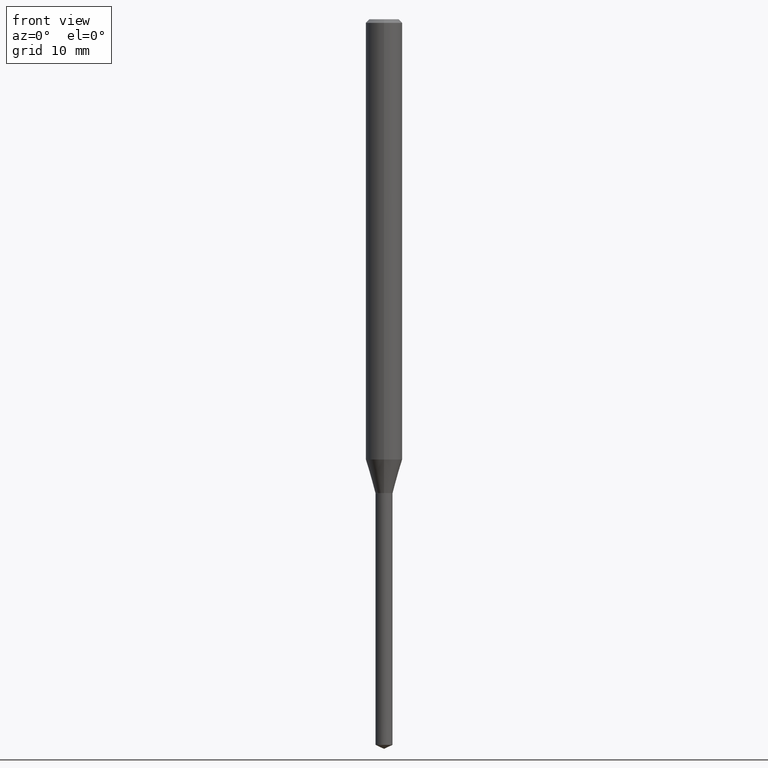
[diagram: clean part render]
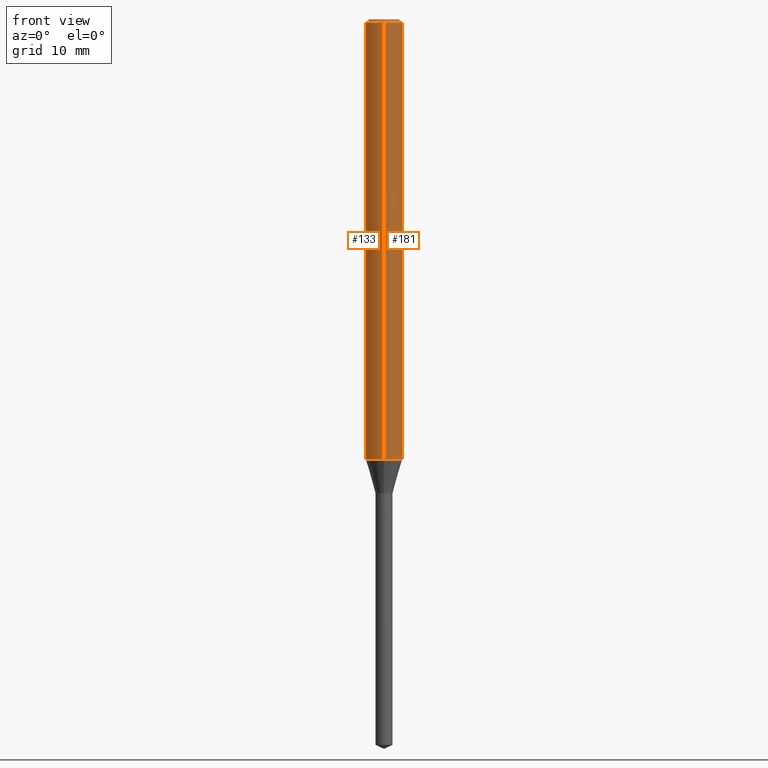
[diagram: same view with one multi-face feature highlighted, each face labeled with its STEP entity id]
A machine part, front view. The highlighted faces form ONE feature: a constant-radius fillet chain: 2 tangent blend faces with common blend radius 1.5 mm. The faces share edges in the B-rep.
Their STEP definitions:
[1] entity #133 (Cylinder):
#93=EDGE_CURVE('',#161,#123,#228,.T.);
#101=VERTEX_POINT('',#237);
#123=VERTEX_POINT('',#263);
#133=ADVANCED_FACE('',(#274),#275,.T.);
#159=VERTEX_POINT('',#304);
#161=VERTEX_POINT('',#306);
#173=EDGE_CURVE('',#159,#161,#318,.T.);
#189=EDGE_CURVE('',#159,#101,#338,.T.);
#203=EDGE_CURVE('',#123,#101,#353,.T.);
#228=CIRCLE('',#373,1.5);
#237=CARTESIAN_POINT('',(0.0,1.5,-36.21));
#263=CARTESIAN_POINT('',(0.0,1.5,-0.299999999999997));
#274=FACE_OUTER_BOUND('',#429,.T.);
#275=CYLINDRICAL_SURFACE('',#430,1.5);
#304=CARTESIAN_POINT('',(1.83690953073357E-016,-1.5,-36.21));
#306=CARTESIAN_POINT('',(1.83690953073357E-016,-1.5,-0.299999999999997));
#318=LINE('',#482,#483);
#338=CIRCLE('',#508,1.5);
#353=LINE('',#529,#530);
#373=AXIS2_PLACEMENT_3D('',#536,#537,#538);
#429=EDGE_LOOP('',(#596,#597,#598,#599));
#430=AXIS2_PLACEMENT_3D('',#600,#601,#602);
#482=CARTESIAN_POINT('',(1.83690953073357E-016,-1.5,-18.255));
#483=VECTOR('',#643,1.0);
#508=AXIS2_PLACEMENT_3D('',#683,#684,#685);
#529=CARTESIAN_POINT('',(-1.83690953073357E-016,1.5,-18.255));
#530=VECTOR('',#699,1.0);
#536=CARTESIAN_POINT('',(0.0,0.0,-0.299999999999997));
#537=DIRECTION('',(0.0,0.0,-1.0));
#538=DIRECTION('',(0.0,1.0,0.0));
#596=ORIENTED_EDGE('',*,*,#203,.T.);
#597=ORIENTED_EDGE('',*,*,#189,.F.);
#598=ORIENTED_EDGE('',*,*,#173,.T.);
#599=ORIENTED_EDGE('',*,*,#93,.T.);
#600=CARTESIAN_POINT('',(0.0,0.0,-18.255));
#601=DIRECTION('',(-0.0,-0.0,1.0));
#602=DIRECTION('',(0.0,1.0,0.0));
#643=DIRECTION('',(-0.0,-0.0,1.0));
#683=CARTESIAN_POINT('',(0.0,0.0,-36.21));
#684=DIRECTION('',(0.0,0.0,-1.0));
#685=DIRECTION('',(0.0,1.0,0.0));
#699=DIRECTION('',(0.0,0.0,-1.0));
[2] entity #181 (Cylinder):
#101=VERTEX_POINT('',#237);
#123=VERTEX_POINT('',#263);
#137=EDGE_CURVE('',#123,#161,#279,.T.);
#159=VERTEX_POINT('',#304);
#161=VERTEX_POINT('',#306);
#163=EDGE_CURVE('',#101,#159,#308,.T.);
#173=EDGE_CURVE('',#159,#161,#318,.T.);
#181=ADVANCED_FACE('',(#328),#329,.T.);
#203=EDGE_CURVE('',#123,#101,#353,.T.);
#237=CARTESIAN_POINT('',(0.0,1.5,-36.21));
#263=CARTESIAN_POINT('',(0.0,1.5,-0.299999999999997));
#279=CIRCLE('',#435,1.5);
#304=CARTESIAN_POINT('',(1.83690953073357E-016,-1.5,-36.21));
#306=CARTESIAN_POINT('',(1.83690953073357E-016,-1.5,-0.299999999999997));
#308=CIRCLE('',#470,1.5);
#318=LINE('',#482,#483);
#328=FACE_OUTER_BOUND('',#494,.T.);
#329=CYLINDRICAL_SURFACE('',#495,1.5);
#353=LINE('',#529,#530);
#435=AXIS2_PLACEMENT_3D('',#603,#604,#605);
#470=AXIS2_PLACEMENT_3D('',#637,#638,#639);
#482=CARTESIAN_POINT('',(1.83690953073357E-016,-1.5,-18.255));
#483=VECTOR('',#643,1.0);
#494=EDGE_LOOP('',(#664,#665,#666,#667));
#495=AXIS2_PLACEMENT_3D('',#668,#669,#670);
#529=CARTESIAN_POINT('',(-1.83690953073357E-016,1.5,-18.255));
#530=VECTOR('',#699,1.0);
#603=CARTESIAN_POINT('',(0.0,0.0,-0.299999999999997));
#604=DIRECTION('',(0.0,0.0,-1.0));
#605=DIRECTION('',(0.0,1.0,0.0));
#637=CARTESIAN_POINT('',(0.0,0.0,-36.21));
#638=DIRECTION('',(0.0,0.0,-1.0));
#639=DIRECTION('',(0.0,1.0,0.0));
#643=DIRECTION('',(-0.0,-0.0,1.0));
#664=ORIENTED_EDGE('',*,*,#203,.F.);
#665=ORIENTED_EDGE('',*,*,#137,.T.);
#666=ORIENTED_EDGE('',*,*,#173,.F.);
#667=ORIENTED_EDGE('',*,*,#163,.F.);
#668=CARTESIAN_POINT('',(0.0,0.0,-18.255));
#669=DIRECTION('',(-0.0,-0.0,1.0));
#670=DIRECTION('',(0.0,1.0,0.0));
#699=DIRECTION('',(0.0,0.0,-1.0));